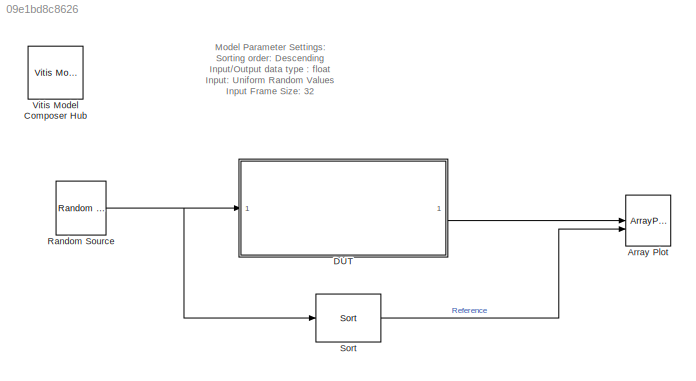
MODEL slx_09e1bd8c8626
KIND model
CONFIG AbsTol = auto
CONFIG EnableMultiTasking = off
CONFIG FixedStep = auto
CONFIG MaxStep = auto
CONFIG MinStep = auto
CONFIG RelTol = 1e-3
CONFIG SampleTimeConstraint = Unconstrained
CONFIG SolverName = VariableStepAuto
CONFIG StartTime = 0.0
CONFIG StopTime = 128/100e6
BLOCK [ArrayPlot] Array Plot
  GraphicalSettings = {"Style":{"BackgroundColor":[0.12941176470588237,0.12941176470588237,0.12941176470588237],"AxesColor":[0.070588235294117646,0.070588235294117646,0.070588235294117646],"LabelsColor":[0.85098039215686272,0.85098039215686272,0.85098039215686272],"PreserveColors":false,"Visible":[true,true],"LineStyle":["-","-"],"LineWidth":[1.5,1.5],"BarWidth":[0.9,0.9],"LineColor":[[1,0.90980392156862744,0.392156862...<+790ch>
  NumInputPorts = 2
  ScopeFrameLocation = window
  ShowLegend = on
  Visible = on
  WasSavedAsWebScope = on
  WindowPosition = [752.000000,250.000000,800.000000,500.000000,]
  YLimits = [-2.6363976744186046 35.6622023255814]
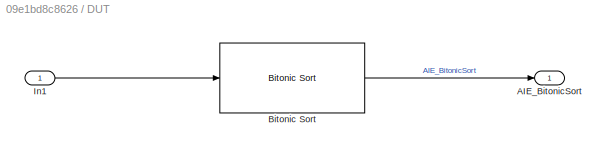
BLOCK [SubSystem] DUT
BLOCK [Outport] DUT/AIE_BitonicSort
BLOCK [Reference] DUT/Bitonic Sort  REF=aieDSP/Bitonic Sort
  SourceBlock = aieDSP/Bitonic Sort
  SourceType = Bitonic Sort
BLOCK [Inport] DUT/In1
BLOCK [Reference] Random Source  REF=dspobslib/Random
Source
  SourceBlock = dspobslib/Random\nSource
  SourceType = Random Source Obsolete
BLOCK [Reference] Sort  REF=dspstat3/Sort
  SourceBlock = dspstat3/Sort
  SourceType = Sort
BLOCK [Reference] Vitis Model Composer Hub  REF=vmcUtilities/Vitis Model Composer Hub
  SourceBlock = vmcUtilities/Vitis Model Composer Hub
  SourceType = VMC Hub
  Tag = genX
  UserDataPersistent = on
ANNOTATION (root): Model Parameter Settings: Sorting order: Descending Input/Output data type : float Input: Uniform Random Values Input Frame Size: 32
LINE DUT/Bitonic Sort:1 -> DUT/AIE_BitonicSort:1
LINE DUT/In1:1 -> DUT/Bitonic Sort:1
LINE DUT:1 -> Array Plot:1
NET Random Source:1 -> DUT:1, Sort:1
LINE Sort:1 -> Array Plot:2
note: NET lines group one-source signal fan-out (src -> all destinations, sorted); 1:1 wires keep LINE
